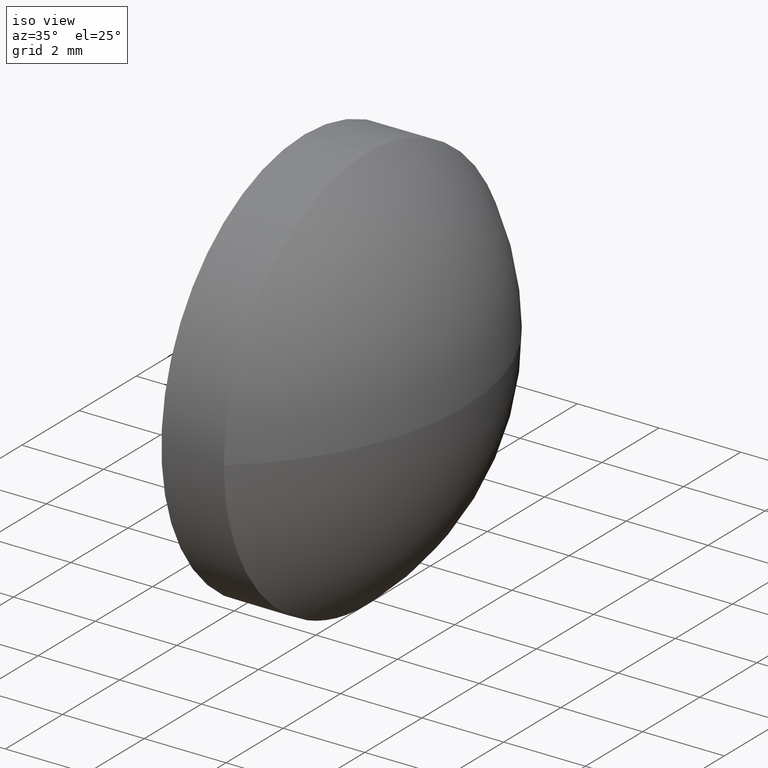
[diagram: clean part render]
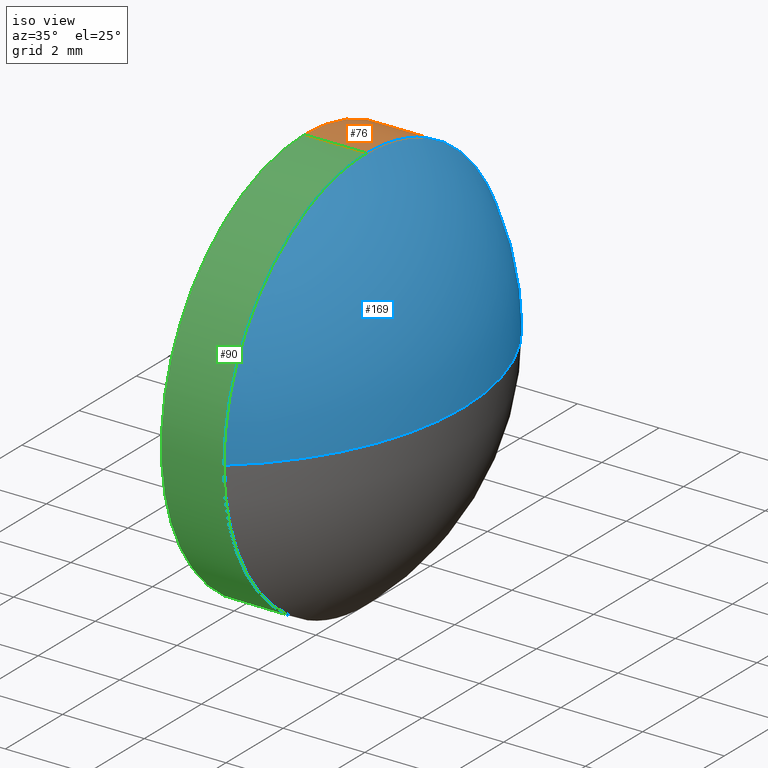
[diagram: same view with three faces highlighted in distinct colors, each labeled with its STEP entity id]
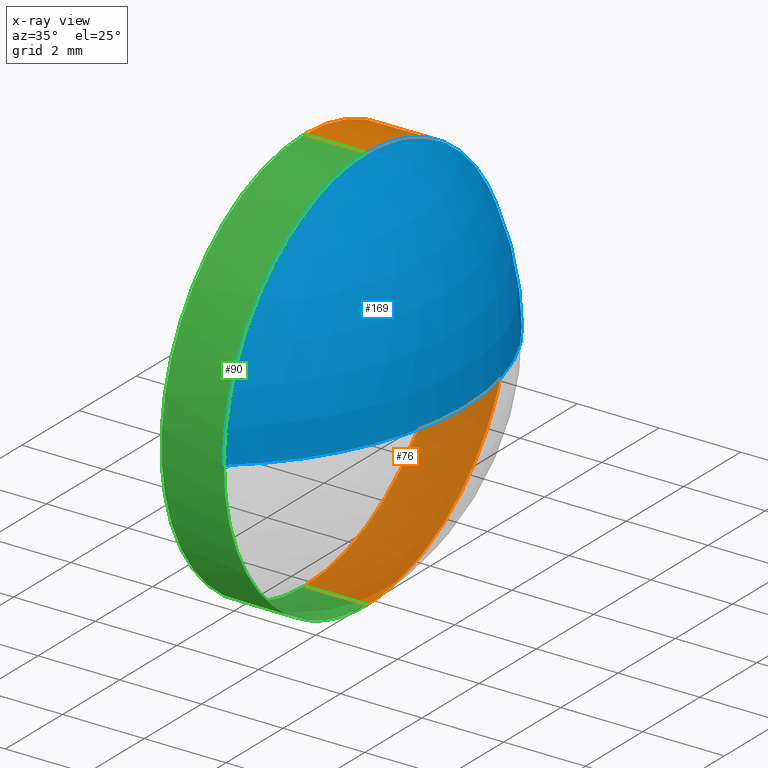
[diagram: x-ray of the same camera — body ghosted, the three highlighted faces saturated]
A machine part, iso view with three faces highlighted in distinct colors.
The next image is the same camera in x-ray (body ghosted, the three faces saturated) — at least one of them is partly hidden behind the body in this view.
Their STEP definitions:

[orange] entity #76 — the highlighted cylindrical surface (partial cylindrical patch) has radius 5 mm, axis along (-1, -0, -0).
#2 = AXIS2_PLACEMENT_3D ( 'NONE', #120, #142, #47 ) ;
#3 = CARTESIAN_POINT ( 'NONE',  ( 413.8165323501980300, 57.37242346822802100, -4.999999999999997300 ) ) ;
#13 = DIRECTION ( 'NONE',  ( -1.000000000000000000, -0.0000000000000000000, -0.0000000000000000000 ) ) ;
#15 = VERTEX_POINT ( 'NONE', #22 ) ;
#20 = EDGE_LOOP ( 'NONE', ( #102, #70, #140, #84, #160 ) ) ;
#22 = CARTESIAN_POINT ( 'NONE',  ( 416.2880828219724700, 57.37242346822802100, 4.999999999999997300 ) ) ;
#23 = CIRCLE ( 'NONE', #39, 4.999999999999997300 ) ;
#26 = EDGE_CURVE ( 'NONE', #132, #37, #114, .T. ) ;
#30 = CARTESIAN_POINT ( 'NONE',  ( 416.2880828219724700, 57.37242346822802100, 0.0000000000000000000 ) ) ;
#37 = VERTEX_POINT ( 'NONE', #40 ) ;
#39 = AXIS2_PLACEMENT_3D ( 'NONE', #30, #45, #49 ) ;
#40 = CARTESIAN_POINT ( 'NONE',  ( 414.7580828219724900, 57.37242346822802100, -4.999999999999997300 ) ) ;
#45 = DIRECTION ( 'NONE',  ( -1.000000000000000000, -0.0000000000000000000, -0.0000000000000000000 ) ) ;
#47 = DIRECTION ( 'NONE',  ( 0.0000000000000000000, 0.0000000000000000000, 1.000000000000000000 ) ) ;
#49 = DIRECTION ( 'NONE',  ( 0.0000000000000000000, 0.0000000000000000000, 1.000000000000000000 ) ) ;
#52 = EDGE_CURVE ( 'NONE', #113, #37, #101, .T. ) ;
#54 = AXIS2_PLACEMENT_3D ( 'NONE', #62, #180, #94 ) ;
#56 = CYLINDRICAL_SURFACE ( 'NONE', #54, 4.999999999999997300 ) ;
#62 = CARTESIAN_POINT ( 'NONE',  ( 413.8165323501980300, 57.37242346822802100, 0.0000000000000000000 ) ) ;
#68 = EDGE_CURVE ( 'NONE', #15, #74, #23, .T. ) ;
#70 = ORIENTED_EDGE ( 'NONE', *, *, #26, .T. ) ;
#71 = CIRCLE ( 'NONE', #2, 4.999999999999997300 ) ;
#74 = VERTEX_POINT ( 'NONE', #158 ) ;
#76 = ADVANCED_FACE ( 'NONE', ( #176 ), #56, .T. ) ;
#79 = CARTESIAN_POINT ( 'NONE',  ( 414.7580828219724900, 57.37242346822802100, 0.0000000000000000000 ) ) ;
#84 = ORIENTED_EDGE ( 'NONE', *, *, #148, .F. ) ;
#94 = DIRECTION ( 'NONE',  ( 0.0000000000000000000, 0.0000000000000000000, 1.000000000000000000 ) ) ;
#95 = VECTOR ( 'NONE', #13, 1000.000000000000000 ) ;
#97 = CARTESIAN_POINT ( 'NONE',  ( 414.7580828219724900, 57.37242346822802100, 4.999999999999997300 ) ) ;
#101 = CIRCLE ( 'NONE', #159, 4.999999999999997300 ) ;
#102 = ORIENTED_EDGE ( 'NONE', *, *, #178, .T. ) ;
#108 = DIRECTION ( 'NONE',  ( 0.0000000000000000000, 0.0000000000000000000, 1.000000000000000000 ) ) ;
#113 = VERTEX_POINT ( 'NONE', #97 ) ;
#114 = LINE ( 'NONE', #3, #141 ) ;
#120 = CARTESIAN_POINT ( 'NONE',  ( 416.2880828219724700, 57.37242346822802100, 0.0000000000000000000 ) ) ;
#132 = VERTEX_POINT ( 'NONE', #138 ) ;
#138 = CARTESIAN_POINT ( 'NONE',  ( 416.2880828219724700, 57.37242346822802100, -4.999999999999997300 ) ) ;
#140 = ORIENTED_EDGE ( 'NONE', *, *, #52, .F. ) ;
#141 = VECTOR ( 'NONE', #147, 1000.000000000000000 ) ;
#142 = DIRECTION ( 'NONE',  ( -1.000000000000000000, -0.0000000000000000000, -0.0000000000000000000 ) ) ;
#145 = LINE ( 'NONE', #164, #95 ) ;
#147 = DIRECTION ( 'NONE',  ( -1.000000000000000000, -0.0000000000000000000, -0.0000000000000000000 ) ) ;
#148 = EDGE_CURVE ( 'NONE', #15, #113, #145, .T. ) ;
#158 = CARTESIAN_POINT ( 'NONE',  ( 416.2880828219724700, 62.37242346822802100, 0.0000000000000000000 ) ) ;
#159 = AXIS2_PLACEMENT_3D ( 'NONE', #79, #172, #108 ) ;
#160 = ORIENTED_EDGE ( 'NONE', *, *, #68, .T. ) ;
#164 = CARTESIAN_POINT ( 'NONE',  ( 413.8165323501980300, 57.37242346822802100, 4.999999999999997300 ) ) ;
#172 = DIRECTION ( 'NONE',  ( -1.000000000000000000, -0.0000000000000000000, -0.0000000000000000000 ) ) ;
#176 = FACE_OUTER_BOUND ( 'NONE', #20, .T. ) ;
#178 = EDGE_CURVE ( 'NONE', #74, #132, #71, .T. ) ;
#180 = DIRECTION ( 'NONE',  ( -1.000000000000000000, -0.0000000000000000000, -0.0000000000000000000 ) ) ;

[blue] entity #169 — the highlighted spherical surface has radius 6.4593 mm.
#1 = CIRCLE ( 'NONE', #58, 4.999999999999997300 ) ;
#8 = ORIENTED_EDGE ( 'NONE', *, *, #73, .F. ) ;
#10 = EDGE_CURVE ( 'NONE', #86, #15, #1, .T. ) ;
#11 = DIRECTION ( 'NONE',  ( 0.0000000000000000000, 1.000000000000000000, 0.0000000000000000000 ) ) ;
#15 = VERTEX_POINT ( 'NONE', #22 ) ;
#22 = CARTESIAN_POINT ( 'NONE',  ( 416.2880828219724700, 57.37242346822802100, 4.999999999999997300 ) ) ;
#23 = CIRCLE ( 'NONE', #39, 4.999999999999997300 ) ;
#28 = CARTESIAN_POINT ( 'NONE',  ( 412.1988212185968900, 57.37242346822802100, 0.0000000000000000000 ) ) ;
#30 = CARTESIAN_POINT ( 'NONE',  ( 416.2880828219724700, 57.37242346822802100, 0.0000000000000000000 ) ) ;
#33 = DIRECTION ( 'NONE',  ( 0.0000000000000000000, 1.000000000000000000, 1.224646799147353700E-016 ) ) ;
#39 = AXIS2_PLACEMENT_3D ( 'NONE', #30, #45, #49 ) ;
#42 = DIRECTION ( 'NONE',  ( 0.0000000000000000000, 0.0000000000000000000, 1.000000000000000000 ) ) ;
#44 = DIRECTION ( 'NONE',  ( -0.0000000000000000000, 0.0000000000000000000, 1.000000000000000000 ) ) ;
#45 = DIRECTION ( 'NONE',  ( -1.000000000000000000, -0.0000000000000000000, -0.0000000000000000000 ) ) ;
#46 = AXIS2_PLACEMENT_3D ( 'NONE', #137, #174, #33 ) ;
#49 = DIRECTION ( 'NONE',  ( 0.0000000000000000000, 0.0000000000000000000, 1.000000000000000000 ) ) ;
#51 = FACE_OUTER_BOUND ( 'NONE', #89, .T. ) ;
#53 = ORIENTED_EDGE ( 'NONE', *, *, #10, .F. ) ;
#58 = AXIS2_PLACEMENT_3D ( 'NONE', #179, #130, #42 ) ;
#66 = AXIS2_PLACEMENT_3D ( 'NONE', #28, #44, #149 ) ;
#68 = EDGE_CURVE ( 'NONE', #15, #74, #23, .T. ) ;
#73 = EDGE_CURVE ( 'NONE', #98, #86, #104, .T. ) ;
#74 = VERTEX_POINT ( 'NONE', #158 ) ;
#78 = SPHERICAL_SURFACE ( 'NONE', #115, 6.459261603375562500 ) ;
#86 = VERTEX_POINT ( 'NONE', #173 ) ;
#89 = EDGE_LOOP ( 'NONE', ( #8, #143, #96, #53 ) ) ;
#91 = CARTESIAN_POINT ( 'NONE',  ( 412.1988212185968900, 57.37242346822802100, 0.0000000000000000000 ) ) ;
#96 = ORIENTED_EDGE ( 'NONE', *, *, #68, .F. ) ;
#98 = VERTEX_POINT ( 'NONE', #170 ) ;
#104 = CIRCLE ( 'NONE', #46, 6.459261603375559000 ) ;
#115 = AXIS2_PLACEMENT_3D ( 'NONE', #91, #123, #11 ) ;
#123 = DIRECTION ( 'NONE',  ( -0.0000000000000000000, 0.0000000000000000000, -1.000000000000000000 ) ) ;
#130 = DIRECTION ( 'NONE',  ( -1.000000000000000000, -0.0000000000000000000, -0.0000000000000000000 ) ) ;
#137 = CARTESIAN_POINT ( 'NONE',  ( 412.1988212185968900, 57.37242346822802100, 0.0000000000000000000 ) ) ;
#143 = ORIENTED_EDGE ( 'NONE', *, *, #184, .T. ) ;
#149 = DIRECTION ( 'NONE',  ( 1.000000000000000000, 0.0000000000000000000, 0.0000000000000000000 ) ) ;
#158 = CARTESIAN_POINT ( 'NONE',  ( 416.2880828219724700, 62.37242346822802100, 0.0000000000000000000 ) ) ;
#163 = CIRCLE ( 'NONE', #66, 6.459261603375566100 ) ;
#169 = ADVANCED_FACE ( 'NONE', ( #51 ), #78, .T. ) ;
#170 = CARTESIAN_POINT ( 'NONE',  ( 418.6580828219724700, 57.37242346822802100, 0.0000000000000000000 ) ) ;
#173 = CARTESIAN_POINT ( 'NONE',  ( 416.2880828219724700, 52.37242346822802800, -6.123233995736764300E-016 ) ) ;
#174 = DIRECTION ( 'NONE',  ( 0.0000000000000000000, 1.224646799147353200E-016, -1.000000000000000000 ) ) ;
#179 = CARTESIAN_POINT ( 'NONE',  ( 416.2880828219724700, 57.37242346822802100, 0.0000000000000000000 ) ) ;
#184 = EDGE_CURVE ( 'NONE', #98, #74, #163, .T. ) ;

[green] entity #90 — the highlighted cylindrical surface (partial cylindrical patch) has radius 5 mm, axis along (-1, -0, -0).
#1 = CIRCLE ( 'NONE', #58, 4.999999999999997300 ) ;
#3 = CARTESIAN_POINT ( 'NONE',  ( 413.8165323501980300, 57.37242346822802100, -4.999999999999997300 ) ) ;
#6 = DIRECTION ( 'NONE',  ( 0.0000000000000000000, 0.0000000000000000000, 1.000000000000000000 ) ) ;
#7 = EDGE_CURVE ( 'NONE', #37, #113, #88, .T. ) ;
#10 = EDGE_CURVE ( 'NONE', #86, #15, #1, .T. ) ;
#13 = DIRECTION ( 'NONE',  ( -1.000000000000000000, -0.0000000000000000000, -0.0000000000000000000 ) ) ;
#15 = VERTEX_POINT ( 'NONE', #22 ) ;
#21 = AXIS2_PLACEMENT_3D ( 'NONE', #135, #155, #156 ) ;
#22 = CARTESIAN_POINT ( 'NONE',  ( 416.2880828219724700, 57.37242346822802100, 4.999999999999997300 ) ) ;
#26 = EDGE_CURVE ( 'NONE', #132, #37, #114, .T. ) ;
#37 = VERTEX_POINT ( 'NONE', #40 ) ;
#40 = CARTESIAN_POINT ( 'NONE',  ( 414.7580828219724900, 57.37242346822802100, -4.999999999999997300 ) ) ;
#42 = DIRECTION ( 'NONE',  ( 0.0000000000000000000, 0.0000000000000000000, 1.000000000000000000 ) ) ;
#48 = DIRECTION ( 'NONE',  ( -1.000000000000000000, -0.0000000000000000000, -0.0000000000000000000 ) ) ;
#50 = EDGE_CURVE ( 'NONE', #132, #86, #67, .T. ) ;
#58 = AXIS2_PLACEMENT_3D ( 'NONE', #179, #130, #42 ) ;
#64 = EDGE_LOOP ( 'NONE', ( #127, #77, #175, #185, #81 ) ) ;
#67 = CIRCLE ( 'NONE', #134, 4.999999999999997300 ) ;
#77 = ORIENTED_EDGE ( 'NONE', *, *, #50, .T. ) ;
#81 = ORIENTED_EDGE ( 'NONE', *, *, #7, .F. ) ;
#86 = VERTEX_POINT ( 'NONE', #173 ) ;
#88 = CIRCLE ( 'NONE', #21, 4.999999999999997300 ) ;
#90 = ADVANCED_FACE ( 'NONE', ( #166 ), #133, .T. ) ;
#95 = VECTOR ( 'NONE', #13, 1000.000000000000000 ) ;
#97 = CARTESIAN_POINT ( 'NONE',  ( 414.7580828219724900, 57.37242346822802100, 4.999999999999997300 ) ) ;
#106 = CARTESIAN_POINT ( 'NONE',  ( 416.2880828219724700, 57.37242346822802100, 0.0000000000000000000 ) ) ;
#112 = AXIS2_PLACEMENT_3D ( 'NONE', #139, #48, #6 ) ;
#113 = VERTEX_POINT ( 'NONE', #97 ) ;
#114 = LINE ( 'NONE', #3, #141 ) ;
#127 = ORIENTED_EDGE ( 'NONE', *, *, #26, .F. ) ;
#130 = DIRECTION ( 'NONE',  ( -1.000000000000000000, -0.0000000000000000000, -0.0000000000000000000 ) ) ;
#132 = VERTEX_POINT ( 'NONE', #138 ) ;
#133 = CYLINDRICAL_SURFACE ( 'NONE', #112, 4.999999999999997300 ) ;
#134 = AXIS2_PLACEMENT_3D ( 'NONE', #106, #162, #136 ) ;
#135 = CARTESIAN_POINT ( 'NONE',  ( 414.7580828219724900, 57.37242346822802100, 0.0000000000000000000 ) ) ;
#136 = DIRECTION ( 'NONE',  ( 0.0000000000000000000, 0.0000000000000000000, 1.000000000000000000 ) ) ;
#138 = CARTESIAN_POINT ( 'NONE',  ( 416.2880828219724700, 57.37242346822802100, -4.999999999999997300 ) ) ;
#139 = CARTESIAN_POINT ( 'NONE',  ( 413.8165323501980300, 57.37242346822802100, 0.0000000000000000000 ) ) ;
#141 = VECTOR ( 'NONE', #147, 1000.000000000000000 ) ;
#145 = LINE ( 'NONE', #164, #95 ) ;
#147 = DIRECTION ( 'NONE',  ( -1.000000000000000000, -0.0000000000000000000, -0.0000000000000000000 ) ) ;
#148 = EDGE_CURVE ( 'NONE', #15, #113, #145, .T. ) ;
#155 = DIRECTION ( 'NONE',  ( -1.000000000000000000, -0.0000000000000000000, -0.0000000000000000000 ) ) ;
#156 = DIRECTION ( 'NONE',  ( 0.0000000000000000000, 0.0000000000000000000, 1.000000000000000000 ) ) ;
#162 = DIRECTION ( 'NONE',  ( -1.000000000000000000, -0.0000000000000000000, -0.0000000000000000000 ) ) ;
#164 = CARTESIAN_POINT ( 'NONE',  ( 413.8165323501980300, 57.37242346822802100, 4.999999999999997300 ) ) ;
#166 = FACE_OUTER_BOUND ( 'NONE', #64, .T. ) ;
#173 = CARTESIAN_POINT ( 'NONE',  ( 416.2880828219724700, 52.37242346822802800, -6.123233995736764300E-016 ) ) ;
#175 = ORIENTED_EDGE ( 'NONE', *, *, #10, .T. ) ;
#179 = CARTESIAN_POINT ( 'NONE',  ( 416.2880828219724700, 57.37242346822802100, 0.0000000000000000000 ) ) ;
#185 = ORIENTED_EDGE ( 'NONE', *, *, #148, .T. ) ;